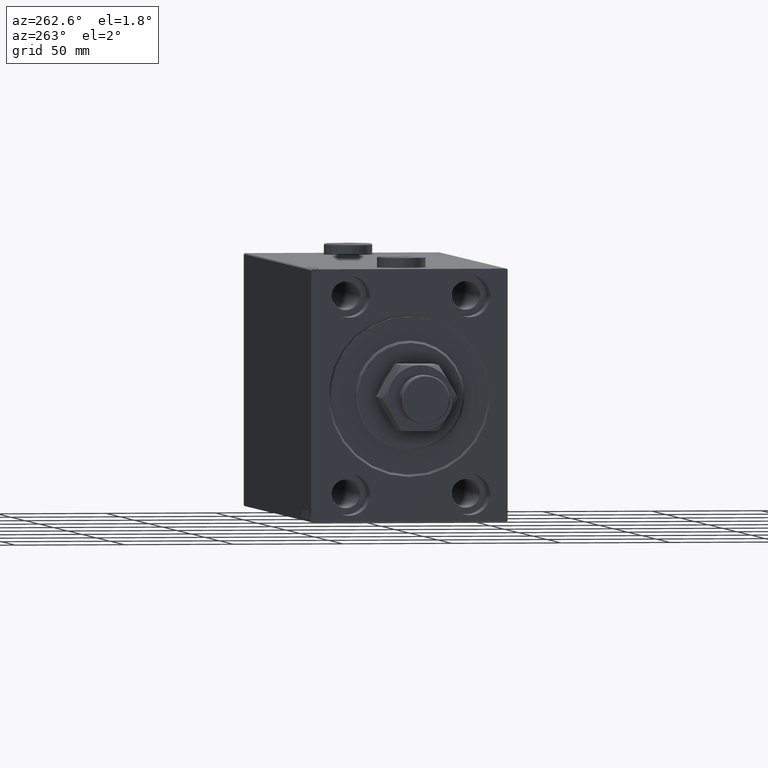
[diagram: clean part render]
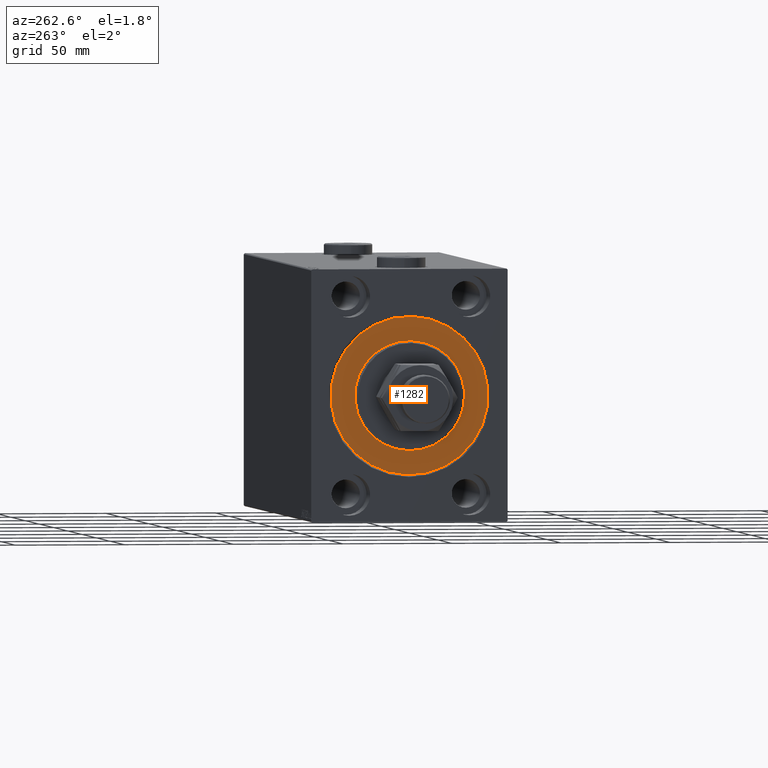
[diagram: same view with one face highlighted and labeled with its STEP entity id]
A machine part, auxiliary view. The second image highlights one B-rep face of the part: STEP entity #1282.
In plain terms, the highlighted planar face has unit normal (1, 0, -0).
Its self-contained STEP definition (entity closure, byte-faithful):
#875 = CARTESIAN_POINT ( 'NONE',  ( 0.000000000000000000, 0.000000000000000000, 0.000000000000000000 ) ) ;
#1282 = ADVANCED_FACE ( 'NONE', ( #4450, #36743 ), #4691, .F. ) ;
#1497 = CARTESIAN_POINT ( 'NONE',  ( 0.000000000000000000, 0.000000000000000000, 0.000000000000000000 ) ) ;
#2866 = CARTESIAN_POINT ( 'NONE',  ( 0.000000000000000000, 0.000000000000000000, 25.00000000000000000 ) ) ;
#4450 = FACE_BOUND ( 'NONE', #45880, .T. ) ;
#4586 = VERTEX_POINT ( 'NONE', #14753 ) ;
#4691 = PLANE ( 'NONE',  #14035 ) ;
#5879 = DIRECTION ( 'NONE',  ( -1.000000000000000000, 0.000000000000000000, 0.000000000000000000 ) ) ;
#5989 = DIRECTION ( 'NONE',  ( -1.000000000000000000, 0.000000000000000000, 0.000000000000000000 ) ) ;
#7484 = CIRCLE ( 'NONE', #16562, 36.00000000000000000 ) ;
#7788 = DIRECTION ( 'NONE',  ( 0.000000000000000000, 0.000000000000000000, 1.000000000000000000 ) ) ;
#8178 = EDGE_LOOP ( 'NONE', ( #20641, #8951 ) ) ;
#8713 = CARTESIAN_POINT ( 'NONE',  ( 0.000000000000000000, 4.408728476930470856E-15, 36.00000000000000000 ) ) ;
#8951 = ORIENTED_EDGE ( 'NONE', *, *, #11173, .F. ) ;
#11173 = EDGE_CURVE ( 'NONE', #36471, #33610, #12682, .T. ) ;
#12682 = CIRCLE ( 'NONE', #28569, 36.00000000000000000 ) ;
#14035 = AXIS2_PLACEMENT_3D ( 'NONE', #875, #19411, #7788 ) ;
#14753 = CARTESIAN_POINT ( 'NONE',  ( 0.000000000000000000, 3.061616997868383043E-15, -25.00000000000000000 ) ) ;
#16562 = AXIS2_PLACEMENT_3D ( 'NONE', #37950, #5879, #19910 ) ;
#19411 = DIRECTION ( 'NONE',  ( -1.000000000000000000, 0.000000000000000000, 0.000000000000000000 ) ) ;
#19910 = DIRECTION ( 'NONE',  ( 0.000000000000000000, 0.000000000000000000, 1.000000000000000000 ) ) ;
#20641 = ORIENTED_EDGE ( 'NONE', *, *, #34313, .F. ) ;
#28569 = AXIS2_PLACEMENT_3D ( 'NONE', #1497, #5989, #37597 ) ;
#28722 = DIRECTION ( 'NONE',  ( 1.000000000000000000, -0.000000000000000000, 0.000000000000000000 ) ) ;
#28725 = VERTEX_POINT ( 'NONE', #2866 ) ;
#29505 = DIRECTION ( 'NONE',  ( 0.000000000000000000, 0.000000000000000000, -1.000000000000000000 ) ) ;
#33610 = VERTEX_POINT ( 'NONE', #44862 ) ;
#34313 = EDGE_CURVE ( 'NONE', #33610, #36471, #7484, .T. ) ;
#35853 = CARTESIAN_POINT ( 'NONE',  ( 0.000000000000000000, 0.000000000000000000, 0.000000000000000000 ) ) ;
#36353 = AXIS2_PLACEMENT_3D ( 'NONE', #35853, #28722, #36785 ) ;
#36471 = VERTEX_POINT ( 'NONE', #8713 ) ;
#36644 = CARTESIAN_POINT ( 'NONE',  ( 0.000000000000000000, 0.000000000000000000, 0.000000000000000000 ) ) ;
#36743 = FACE_OUTER_BOUND ( 'NONE', #8178, .T. ) ;
#36785 = DIRECTION ( 'NONE',  ( 0.000000000000000000, 0.000000000000000000, -1.000000000000000000 ) ) ;
#36865 = EDGE_CURVE ( 'NONE', #4586, #28725, #40166, .T. ) ;
#37597 = DIRECTION ( 'NONE',  ( 0.000000000000000000, 0.000000000000000000, 1.000000000000000000 ) ) ;
#37950 = CARTESIAN_POINT ( 'NONE',  ( 0.000000000000000000, 0.000000000000000000, 0.000000000000000000 ) ) ;
#39450 = AXIS2_PLACEMENT_3D ( 'NONE', #36644, #44493, #29505 ) ;
#39503 = EDGE_CURVE ( 'NONE', #28725, #4586, #46309, .T. ) ;
#40166 = CIRCLE ( 'NONE', #36353, 25.00000000000000000 ) ;
#41015 = ORIENTED_EDGE ( 'NONE', *, *, #36865, .F. ) ;
#44493 = DIRECTION ( 'NONE',  ( 1.000000000000000000, -0.000000000000000000, 0.000000000000000000 ) ) ;
#44862 = CARTESIAN_POINT ( 'NONE',  ( 0.000000000000000000, 0.000000000000000000, -36.00000000000000000 ) ) ;
#45162 = ORIENTED_EDGE ( 'NONE', *, *, #39503, .F. ) ;
#45880 = EDGE_LOOP ( 'NONE', ( #45162, #41015 ) ) ;
#46309 = CIRCLE ( 'NONE', #39450, 25.00000000000000000 ) ;